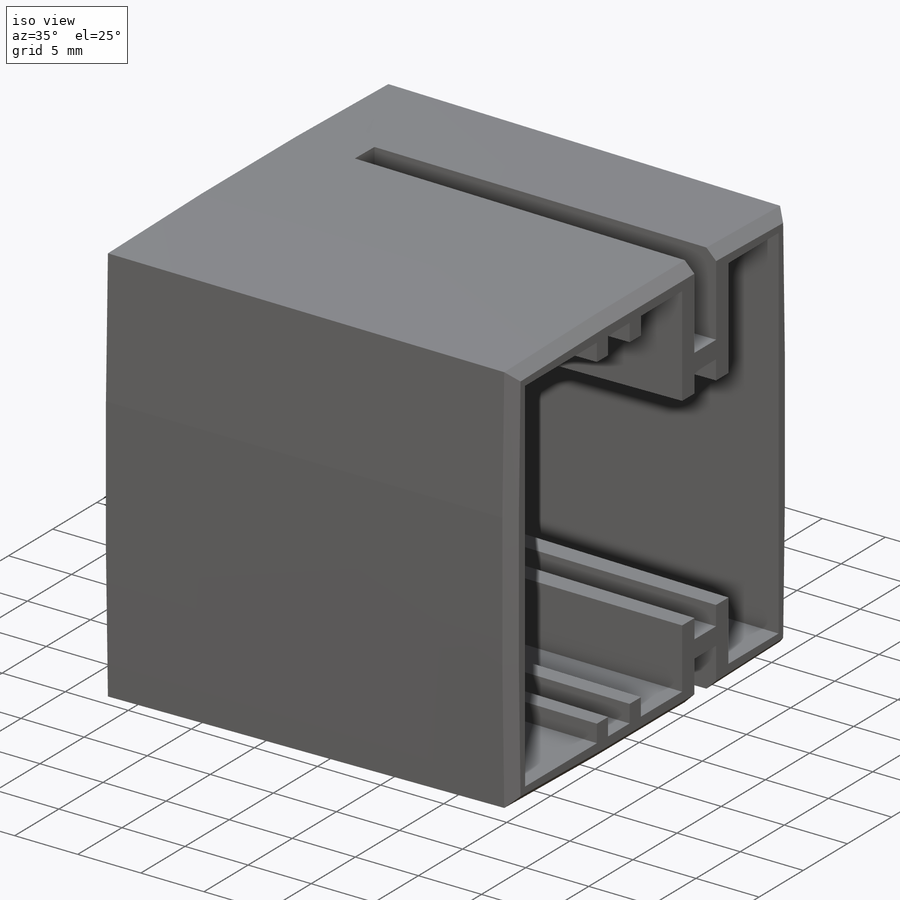
[diagram: iso view]
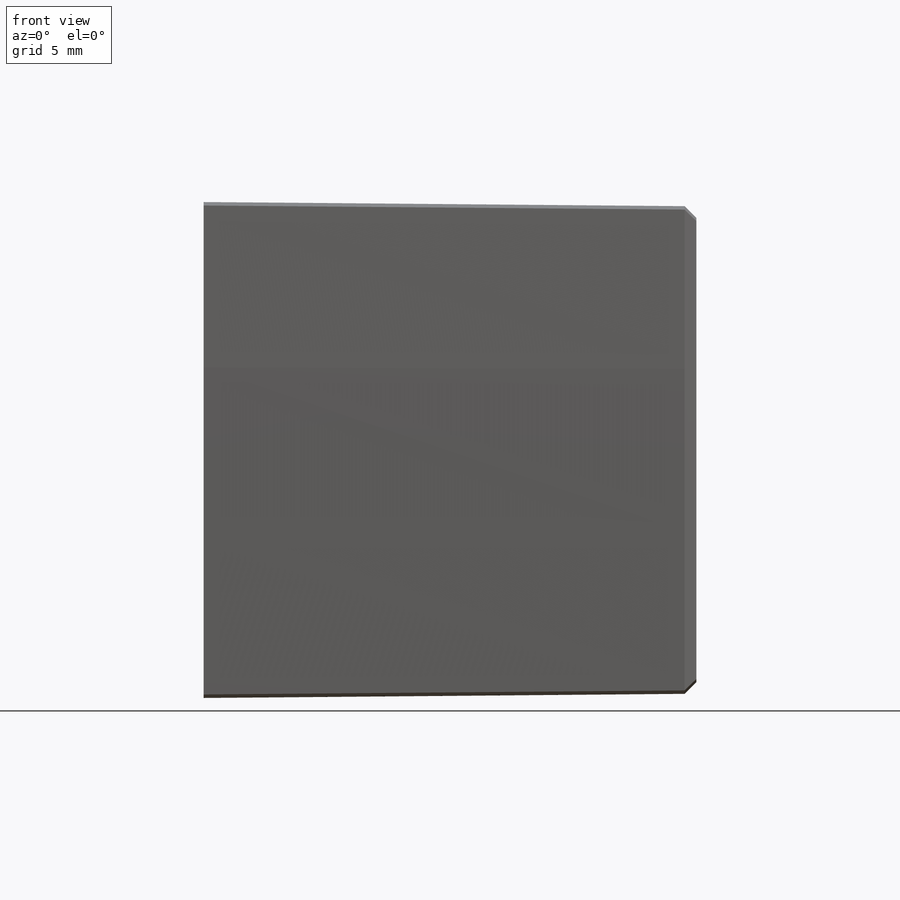
[diagram: front view]
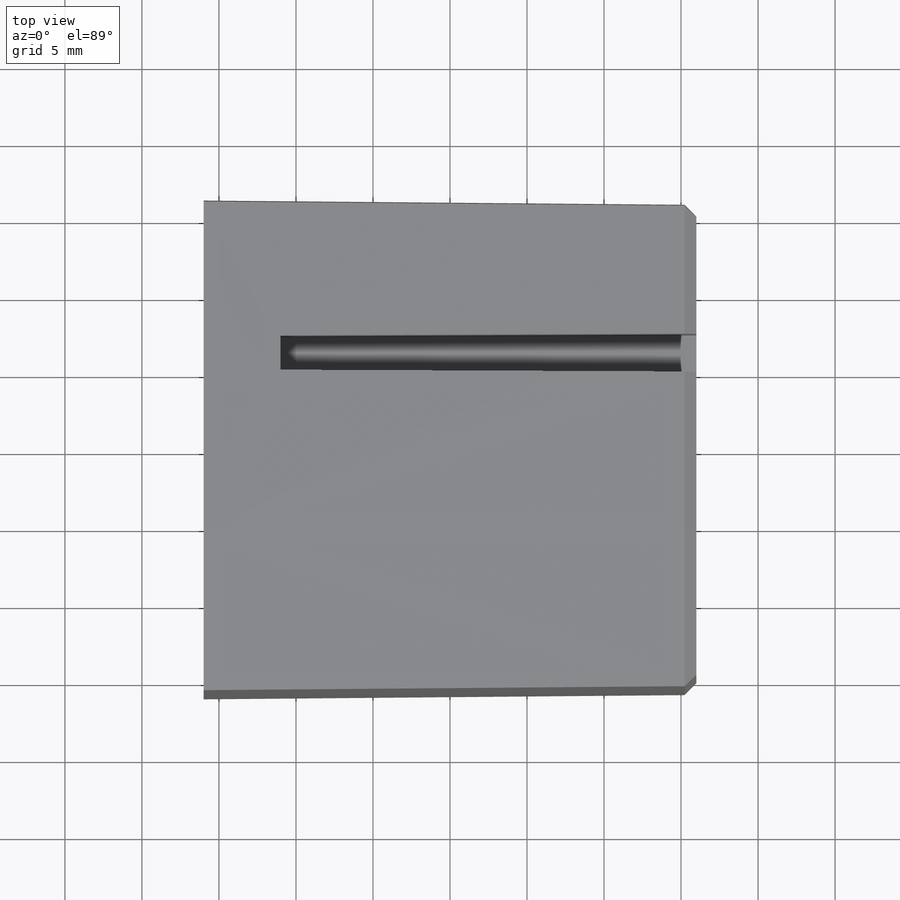
[diagram: top view]
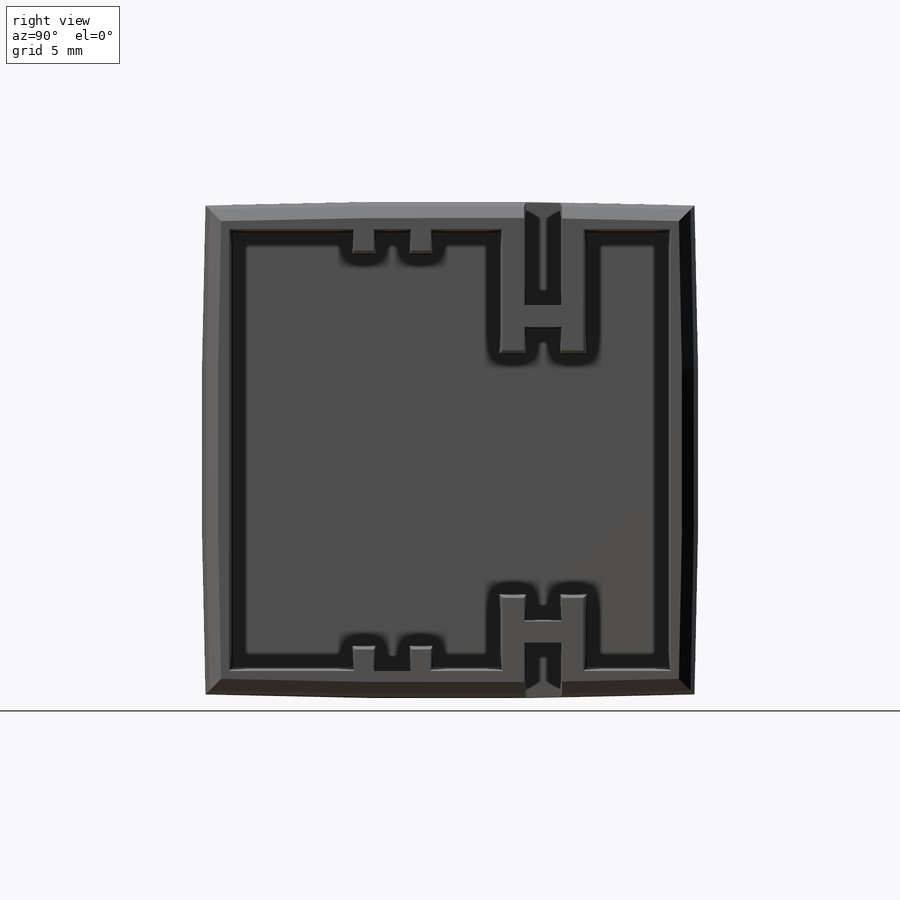
[diagram: right view]
SOLIDWORKS PART (.sldprt)
format: sldprt  version: not decoded by parser v0  size: 525,824 bytes
history: native  units: mm
features: sketch x8, extrude x4, cut_extrude x3, material x1, plane x1, chamfer x1 (+11 scaffold rows collapsed)
feature tree (29):
  scaffold x11  (default folders/planes/origin — collapsed)
  material  "ABS"
  plane  "Plane1"
  sketch  "Sketch1"
  extrude  "Boss-Extrude1"  [1 undecoded]
  sketch  "Sketch3"  dims[D1=32.0mm]
  cut_extrude  "Cut-Extrude1"  [1 undecoded]
  sketch  "Sketch2"  dims[D1=0.0mm]
  extrude  "Boss-Extrude2"  Depth=1.524mm
  sketch  "Sketch4"
  extrude  "Boss-Extrude3"  Depth=2mm
  sketch  "Sketch5"  dims[D1=0.0mm D2=0.0mm]
  extrude  "Boss-Extrude4"  Depth=5mm
  sketch  "Sketch6"  dims[D1=32.258mm D2=0.254mm D5=1.016mm D6=2.54mm D7=5.0mm]
  sketch  "Sketch8"  dims[D1=0.0mm]
  cut_extrude  "Cut-Extrude2"  [1 undecoded]
  sketch  "Sketch9"  dims[D1=0.0mm]
  cut_extrude  "Cut-Extrude3"  [1 undecoded]
  chamfer  "Chamfer1"  Distance=0.762mm Angle=45deg
decode coverage: 10 of 16 modeling features carry decoded parameters
note: 4 parameter values undecoded
summary: no parameter record found for 4 features
note: suppression state not decoded; provenance and decode notes live in map.json
